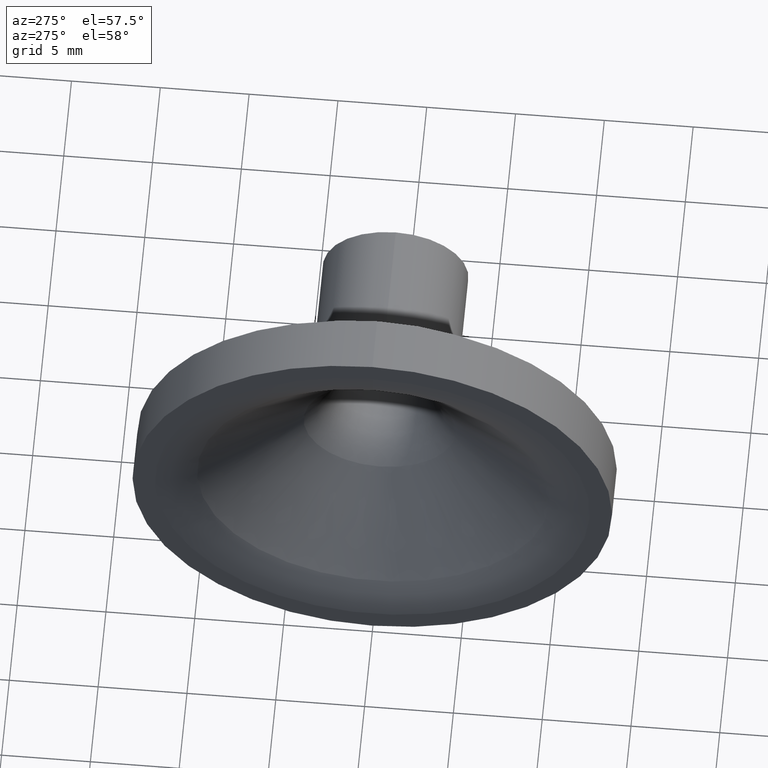
[diagram: clean part render]
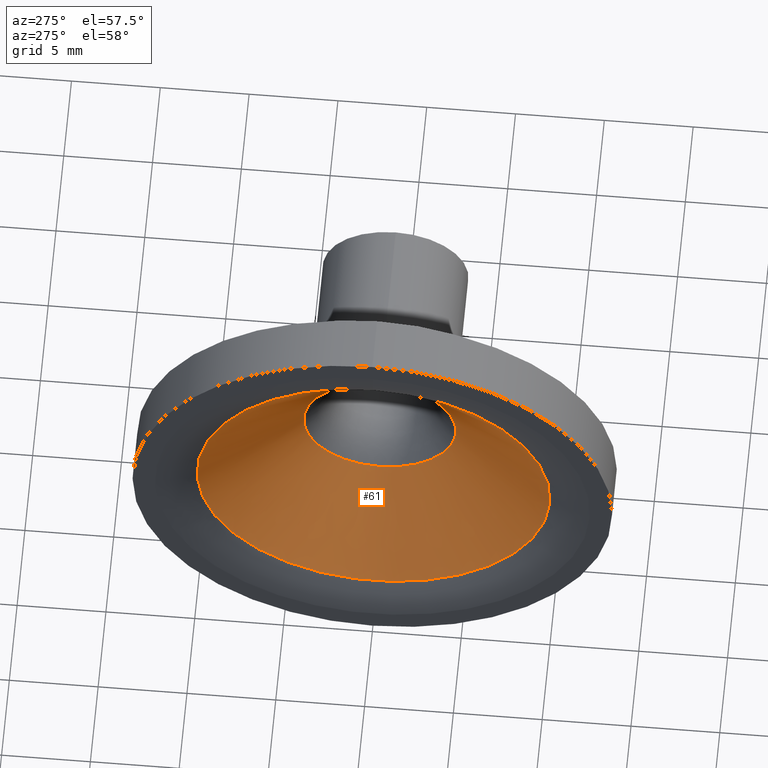
[diagram: same view with one face highlighted and labeled with its STEP entity id]
A machine part, auxiliary view. The second image highlights one B-rep face of the part: STEP entity #61.
In plain terms, the highlighted conical surface has half-angle 54.703 deg.
Its self-contained STEP definition (entity closure, byte-faithful):
#61 = ADVANCED_FACE( '', ( #128, #129 ), #130, .F. );
#128 = FACE_OUTER_BOUND( '', #187, .T. );
#129 = FACE_BOUND( '', #188, .T. );
#130 = CONICAL_SURFACE( '', #189, 4.28873230233161, 0.954744968961669 );
#187 = EDGE_LOOP( '', ( #264 ) );
#188 = EDGE_LOOP( '', ( #265 ) );
#189 = AXIS2_PLACEMENT_3D( '', #266, #267, #268 );
#264 = ORIENTED_EDGE( '', *, *, #271, .T. );
#265 = ORIENTED_EDGE( '', *, *, #280, .F. );
#266 = CARTESIAN_POINT( '', ( -10.2646656229566, 0.000000000000000, 0.000000000000000 ) );
#267 = DIRECTION( '', ( -1.00000000000000, 0.000000000000000, -0.000000000000000 ) );
#268 = DIRECTION( '', ( 0.000000000000000, 0.000000000000000, 1.00000000000000 ) );
#271 = EDGE_CURVE( '', #298, #298, #299, .T. );
#280 = EDGE_CURVE( '', #312, #312, #313, .T. );
#298 = VERTEX_POINT( '', #337 );
#299 = CIRCLE( '', #338, 9.93873230233161 );
#312 = VERTEX_POINT( '', #351 );
#313 = CIRCLE( '', #352, 4.28873230233161 );
#337 = CARTESIAN_POINT( '', ( -14.2646656229566, 0.000000000000000, 9.93873230233161 ) );
#338 = AXIS2_PLACEMENT_3D( '', #376, #377, #378 );
#351 = CARTESIAN_POINT( '', ( -10.2646656229566, 0.000000000000000, 4.28873230233161 ) );
#352 = AXIS2_PLACEMENT_3D( '', #391, #392, #393 );
#376 = CARTESIAN_POINT( '', ( -14.2646656229566, 0.000000000000000, 0.000000000000000 ) );
#377 = DIRECTION( '', ( -1.00000000000000, 0.000000000000000, 0.000000000000000 ) );
#378 = DIRECTION( '', ( 0.000000000000000, 0.000000000000000, 1.00000000000000 ) );
#391 = CARTESIAN_POINT( '', ( -10.2646656229566, 0.000000000000000, 0.000000000000000 ) );
#392 = DIRECTION( '', ( -1.00000000000000, 0.000000000000000, 0.000000000000000 ) );
#393 = DIRECTION( '', ( 0.000000000000000, 0.000000000000000, 1.00000000000000 ) );